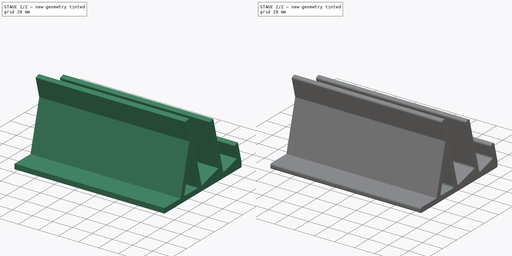
[diagram: build sequence overview — one tinted view per stage of 2, left to right]
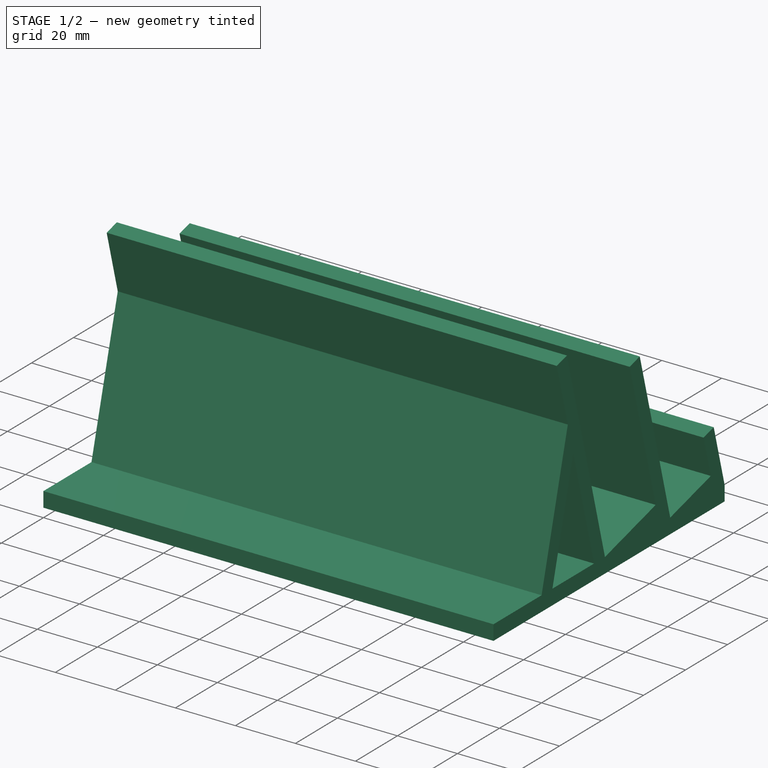
[diagram: stage 1 of 2 — iso view after this stage's code; geometry added in this stage tinted green]
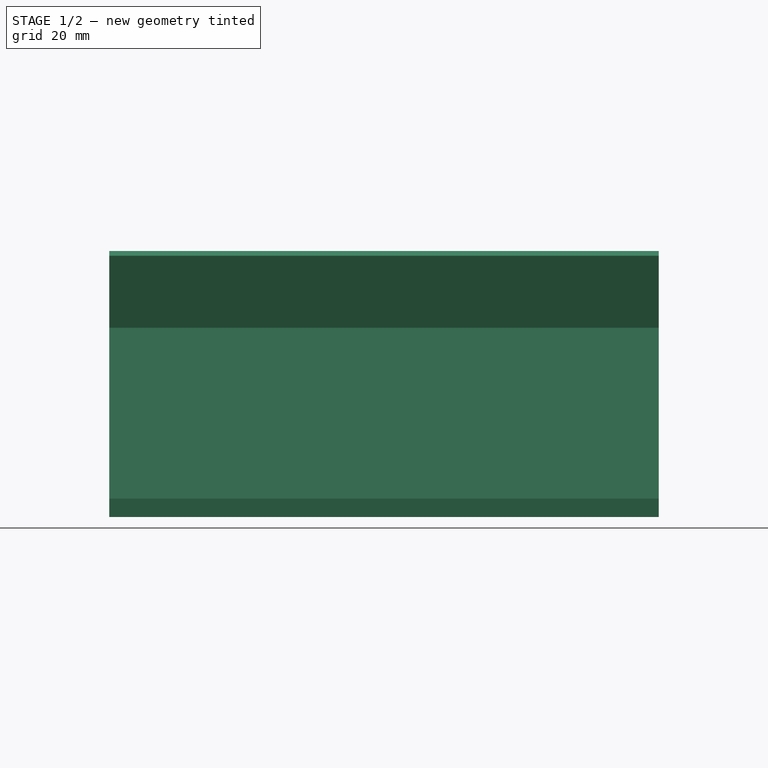
[diagram: stage 1 of 2 — front view after this stage's code; geometry added in this stage tinted green]
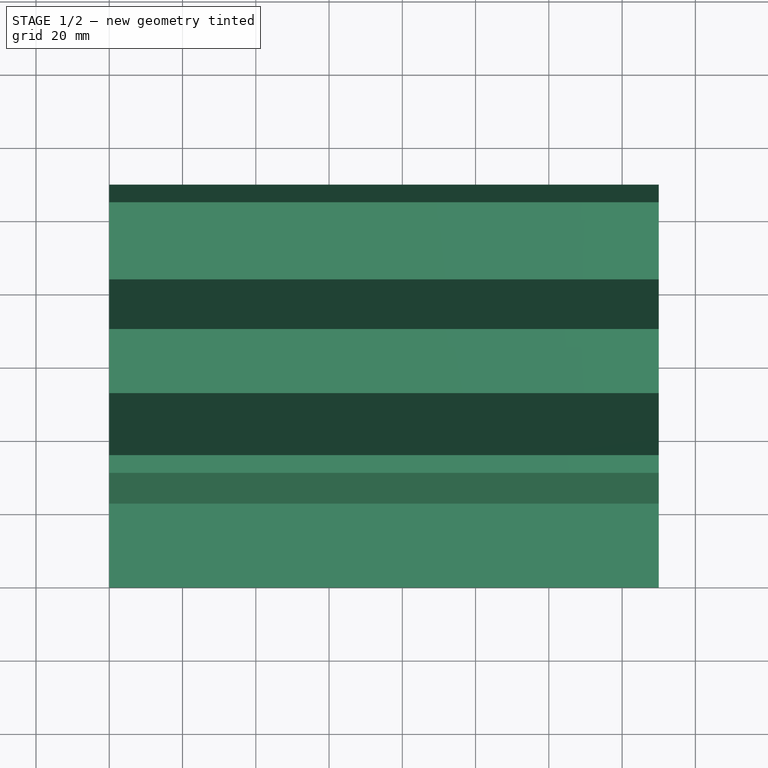
[diagram: stage 1 of 2 — top view after this stage's code; geometry added in this stage tinted green]
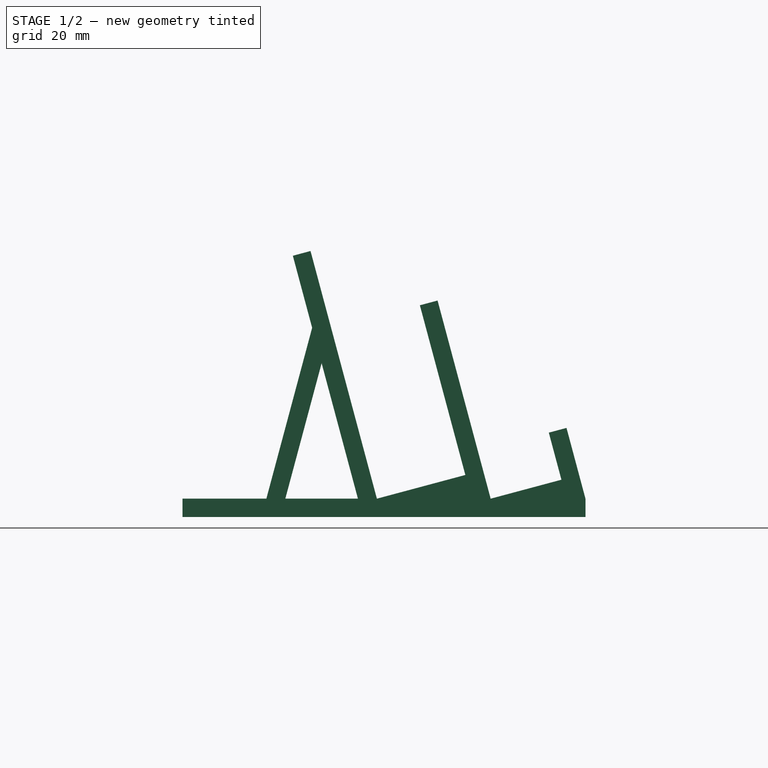
[diagram: stage 1 of 2 — right view after this stage's code; geometry added in this stage tinted green]
FCSTD DOCUMENT  (FreeCAD 1.0R39285 (Git))
Label: laptop-stand
License: Creative Commons Attribution-NonCommercial-ShareAlike 4.0
LicenseURL: https://creativecommons.org/licenses/by-nc-sa/4.0/
objects: Sketcher::SketchObject×2, PartDesign::Pad×1, PartDesign::Pocket×1, PartDesign::Fillet×1, PartDesign::Body×1
note: 14 computed .brp shape members not serialized (recipe doc carries the construction recipe); baked Part::Feature solids carry a one-line shape summary decoded from their .brp

FEATURE [Sketcher::SketchObject] Sketch
  ArcFitTolerance = 1e-06
  AttachmentSupport = -> [YZ_Plane]
  FullyConstrained = true
  MakeInternals = false
  MapMode = 5
  Placement = pos=(0,0,0) rot=(0.57735,0.57735,0.57735;2.0944rad)
  sketch-geometry (22):
    g0: LineSegment StartX=0 StartY=0 StartZ=0 EndX=110 EndY=0 EndZ=0
    g1: LineSegment StartX=110 StartY=0 StartZ=0 EndX=110 EndY=5 EndZ=0
    g2: LineSegment StartX=0 StartY=5 StartZ=0 EndX=0 EndY=0 EndZ=0
    g3: LineSegment StartX=110 StartY=5 StartZ=0 EndX=104.824 EndY=24.3185 EndZ=0
    g4: LineSegment StartX=104.824 StartY=24.3185 StartZ=0 EndX=99.994 EndY=23.0244 EndZ=0
    g5: LineSegment StartX=84.1181 StartY=5 StartZ=0 EndX=69.6242 EndY=59.0918 EndZ=0
    g6: LineSegment StartX=69.6242 StartY=59.0918 StartZ=0 EndX=64.7946 EndY=57.7978 EndZ=0
    g7: LineSegment StartX=53.0598 StartY=5 StartZ=0 EndX=34.9425 EndY=72.6148 EndZ=0
    g8: LineSegment StartX=34.9425 StartY=72.6148 StartZ=0 EndX=30.1128 EndY=71.3207 EndZ=0
    g9: LineSegment StartX=53.0598 StartY=5 StartZ=0 EndX=77.208 EndY=11.4705 EndZ=0
    g10: LineSegment StartX=110 StartY=5 StartZ=0 EndX=47.8834 EndY=5 EndZ=0
    g11: LineSegment StartX=64.7946 StartY=57.7978 StartZ=0 EndX=77.208 EndY=11.4705 EndZ=0
    g12: LineSegment StartX=77.208 StartY=11.4705 StartZ=0 EndX=78.9417 EndY=5 EndZ=0
    g13: LineSegment StartX=99.994 StartY=23.0244 StartZ=0 EndX=103.437 EndY=10.1764 EndZ=0
    g14: LineSegment StartX=35.3834 StartY=51.6506 StartZ=0 EndX=22.8834 EndY=5 EndZ=0
    g15: LineSegment StartX=47.8834 StartY=5 StartZ=0 EndX=22.8834 EndY=5 EndZ=0
    g16: LineSegment StartX=22.8834 StartY=5 StartZ=0 EndX=0 EndY=5 EndZ=0
    g17: LineSegment StartX=30.1128 StartY=71.3207 StartZ=0 EndX=35.3834 EndY=51.6506 EndZ=0
    g18: LineSegment StartX=35.3834 StartY=51.6506 StartZ=0 EndX=47.8834 EndY=5 EndZ=0
    g19: LineSegment StartX=84.1181 StartY=5 StartZ=0 EndX=103.437 EndY=10.1764 EndZ=0
    g20: LineSegment [constr] StartX=69.6242 StartY=59.0918 StartZ=0 EndX=103.437 EndY=10.1764 EndZ=0
    g21: LineSegment [constr] StartX=34.9425 StartY=72.6148 StartZ=0 EndX=77.208 EndY=11.4705 EndZ=0
  constraints (68):
    c: Coincident(g0,g1)
    c: Coincident(g1,g10)
    c: Coincident(g16,g2)
    c: Coincident(g2,g0)
    c: Horizontal(g0)
    c: Vertical(g1)
    c: Vertical(g2)
    c: Distance(g0,g16) = 5
    c: PointOnObject(g0,g-1)
    c: Coincident(g3,g4)
    c: Coincident(g4,g13)
    c: Coincident(g3,g1)
    c: Coincident(g5,g6)
    c: Coincident(g6,g11)
    c: Distance(g1,g2) = 110
    c: Coincident(g7,g8)
    c: Coincident(g8,g17)
    c: Distance(g7,g7) = 70
    c: Distance(g5,g5) = 56
    c: Distance(g3,g1) = 20
    c: Coincident(g9,g7)
    c: PointOnObject(g0,g-2)
    c: Coincident(g10,g15)
    c: Horizontal(g10)
    c: PointOnObject(g5,g10)
    c: PointOnObject(g7,g10)
    c: PointOnObject(g12,g10)
    c: PointOnObject(g18,g10)
    c: Coincident(g11,g12)
    c: Distance(g5,g11) = 5
    c: PointOnObject(g9,g11)
    c: Distance(g3,g13) = 5
    c: PointOnObject(g11,g9)
    c: DistanceX(g14,g18) = 25
    c: Coincident(g15,g16)
    c: Horizontal(g15)
    c: Horizontal(g16)
    c: PointOnObject(g14,g15)
    c: Coincident(g17,g18)
    c: Distance(g7,g17) = 5
    c: PointOnObject(g10,g17)
    c: PointOnObject(g14,g17)
    c: PointOnObject(g17,g14)
    c: PointOnObject(g15,g14)
    c: Angle(g15,g14) = 1.309
    c: Angle(g3,g10) = 1.309
    c: Parallel(g3,g13)
    c: Parallel(g5,g11)
    c: Parallel(g7,g18)
    c: Angle(g18,g15) = 1.309
    c: Parallel(g11,g12)
    c: Parallel(g17,g18)
    c: Perpendicular(g3,g4)
    c: Perpendicular(g9,g7)
    c: Perpendicular(g11,g6)
    c: Perpendicular(g17,g8)
    c: Distance(g7,g11) = 25
    c: Distance(g13,g5) = 20
    c: Coincident(g19,g5)
    c: Coincident(g19,g13)
    c: Perpendicular(g13,g19)
    c: Angle(g5,g10) = 1.309
    c: Coincident(g20,g5)
    c: Coincident(g20,g13)
    c: Coincident(g21,g7)
    c: Coincident(g21,g9)
    c: Angle(g20,g19) = 1.22777
    c: Angle(g21,g9) = 1.22777
FEATURE [PartDesign::Pad] Pad
  Direction = (1,0,0)
  Length = 150
  Length2 = 10
  Placement = pos=(0,0,0) rot=(1,1,1;2.0944rad)
  Profile = -> Sketch [Edge6,Edge5,Edge7,Edge8,Edge9,Edge10,Edge11,Edge12,Edge13,Edge15,Edge16,Edge17,Edge18,Edge19,Edge3,Edge4]
  ReferenceAxis = -> Sketch [N_Axis]
  Refine = true
  Suppressed = false
  Type = 0
FEATURE [Sketcher::SketchObject] Sketch001
  ArcFitTolerance = 1e-06
  AttachmentSupport = -> [Pad]
  ExternalGeometry = -> [Sketch,Pad]
  FullyConstrained = true
  MakeInternals = false
  MapMode = 5
  Placement = pos=(-1.78e-14,0,0) rot=(0.57735,0.57735,-0.57735;4.18879rad)
  sketch-geometry (3):
    g0: LineSegment StartX=28.0598 StartY=-5 StartZ=0 EndX=37.9716 EndY=-41.9914 EndZ=0
    g1: LineSegment StartX=37.9716 StartY=-41.9914 StartZ=0 EndX=47.8834 EndY=-5 EndZ=0
    g2: LineSegment StartX=47.8834 StartY=-5 StartZ=0 EndX=28.0598 EndY=-5 EndZ=0
  constraints (8):
    c: PointOnObject(g0,g-4)
    c: PointOnObject(g0,g-3)
    c: Coincident(g0,g1)
    c: Coincident(g1,g-4)
    c: Coincident(g1,g2)
    c: Coincident(g2,g0)
    c: Parallel(g0,g-5)
    c: Distance(g-5,g0) = 5
FEATURE [PartDesign::Pocket] Pocket
  BaseFeature = -> Pad
  Direction = (1,0,0)
  Length = 200
  Length2 = 5
  Placement = pos=(0,0,0) rot=(1,1,1;2.0944rad)
  Profile = -> Sketch001
  ReferenceAxis = -> Sketch001 [N_Axis]
  Refine = true
  Suppressed = false
  Type = 0
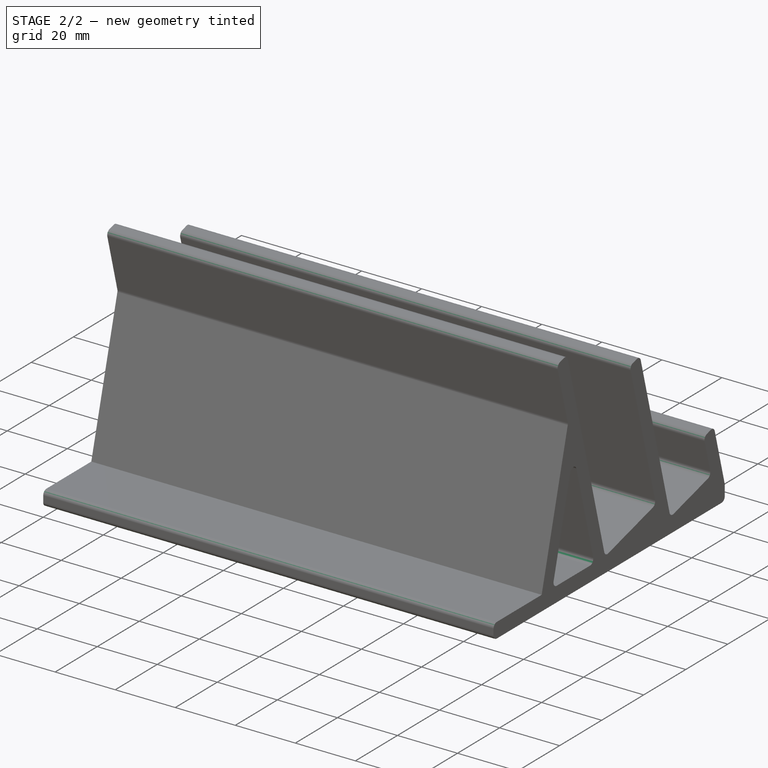
[diagram: stage 2 of 2 — iso view after this stage's code; geometry added in this stage tinted green]
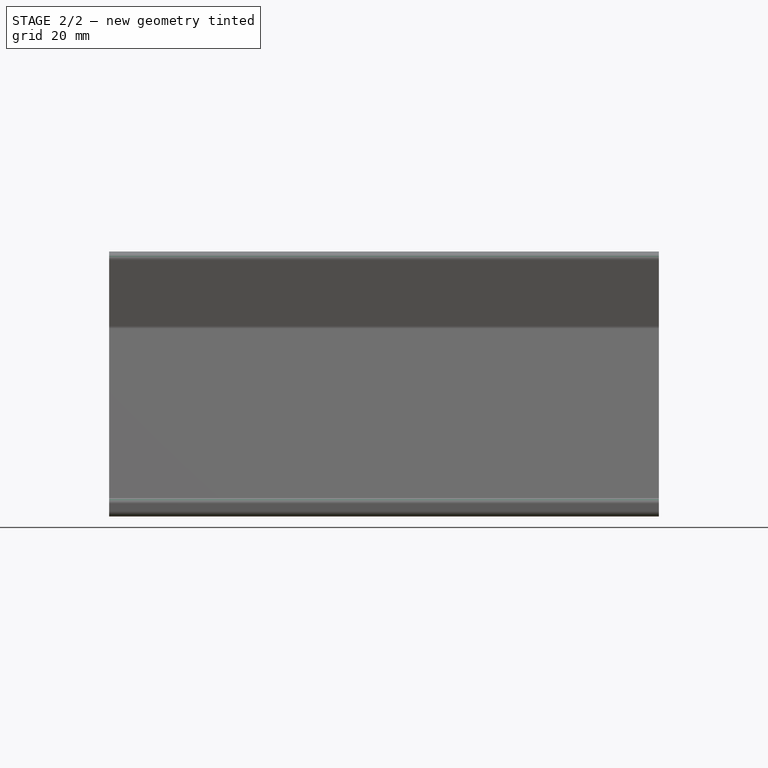
[diagram: stage 2 of 2 — front view after this stage's code; geometry added in this stage tinted green]
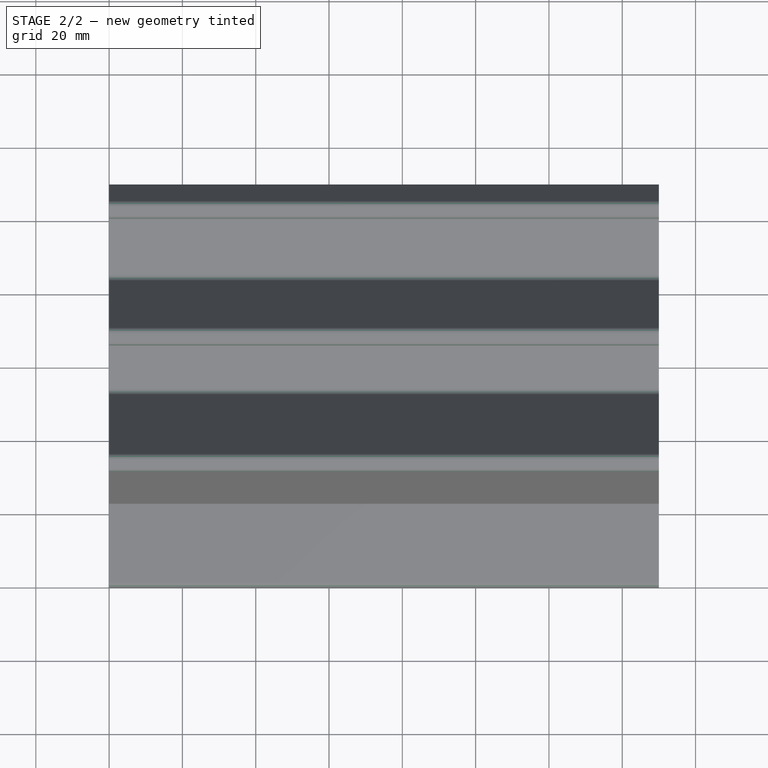
[diagram: stage 2 of 2 — top view after this stage's code; geometry added in this stage tinted green]
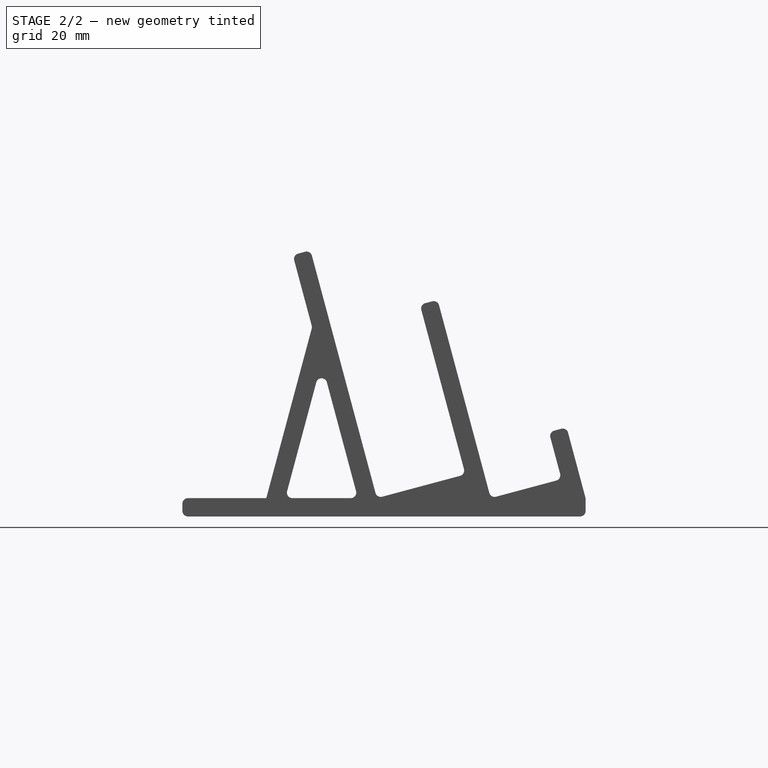
[diagram: stage 2 of 2 — right view after this stage's code; geometry added in this stage tinted green]
FEATURE [PartDesign::Fillet] Fillet
  Base = -> Pocket [Edge49,Edge51,Edge52,Edge50,Edge44,Edge8,Edge48,Edge53,Edge2,Edge1,Edge55,Edge46,Edge54,Edge56,Edge43,Edge5,Edge47,Edge57]
  BaseFeature = -> Pocket
  Placement = pos=(0,0,0) rot=(1,1,1;2.0944rad)
  Radius = 1.5
  Refine = true
  SupportTransform = false
  Suppressed = false
  UseAllEdges = false
FEATURE [PartDesign::Body] Body
  AllowCompound = false
  Group = -> [Sketch,Pad,Sketch001,Pocket,Fillet]
  Origin = -> Origin
  Tip = -> Fillet
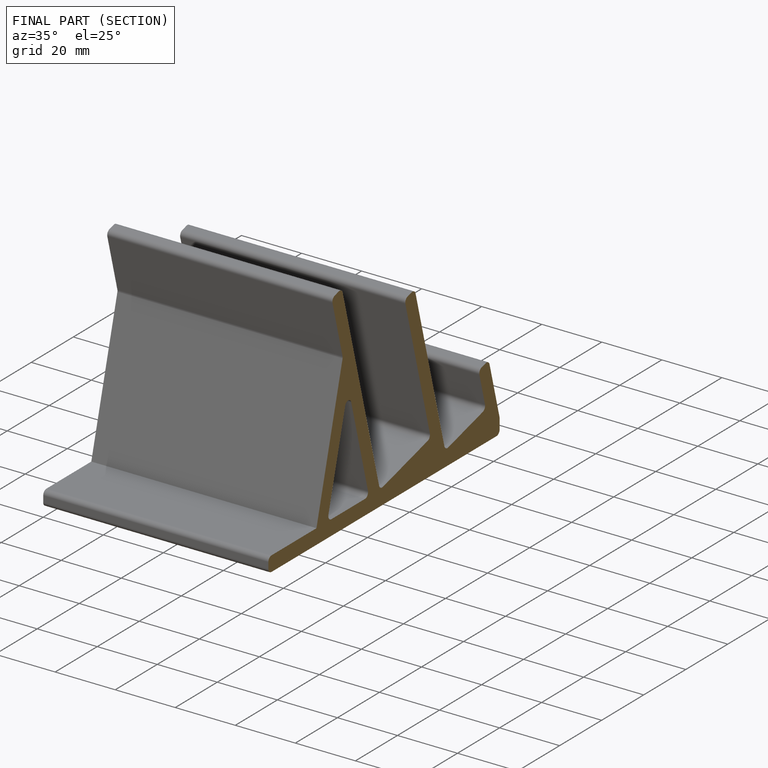
[diagram: finished part — half-section view (interior)]
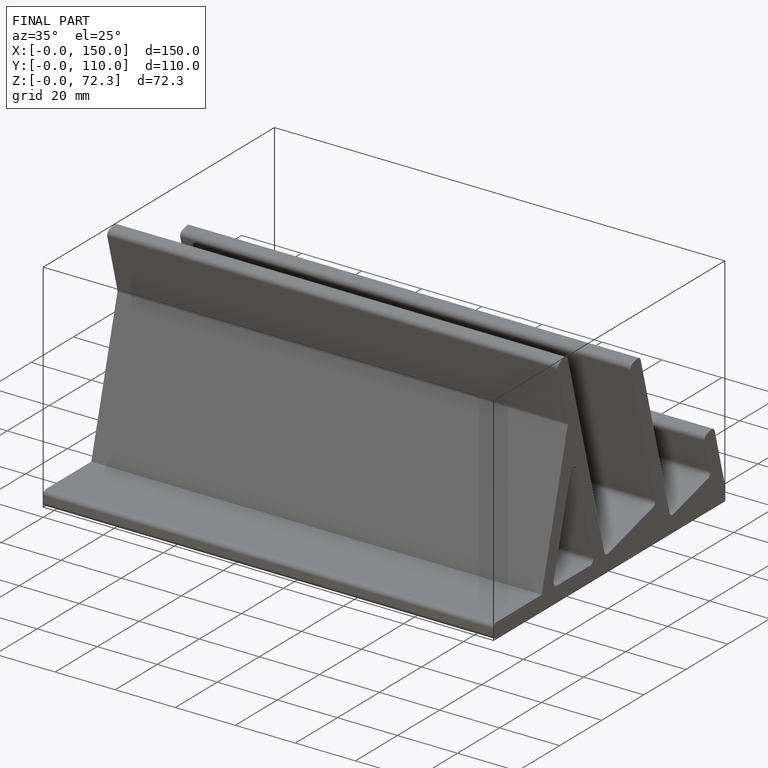
[diagram: finished part — iso view with bounding-box wireframe]
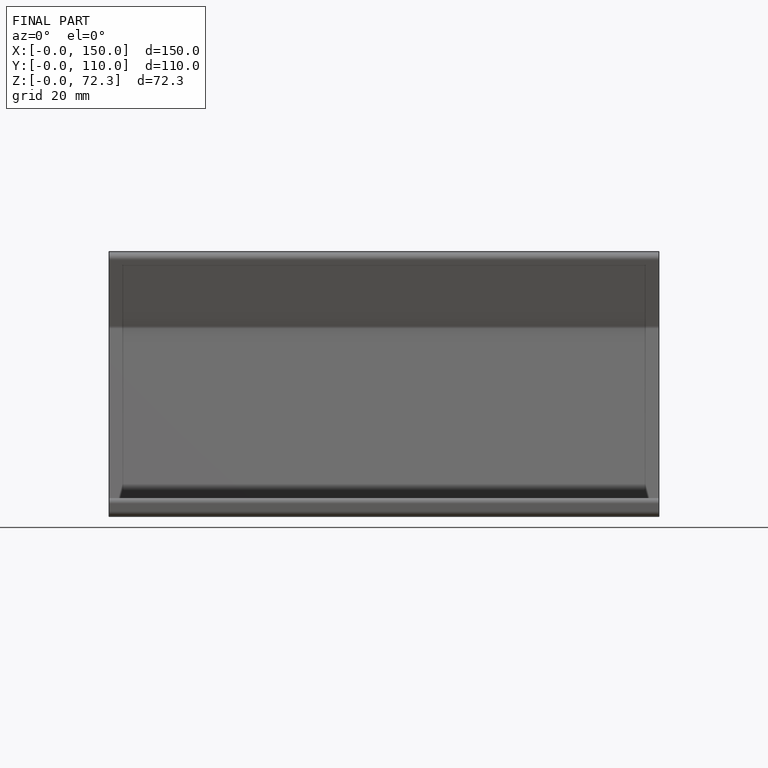
[diagram: finished part — front view with bounding-box wireframe]
